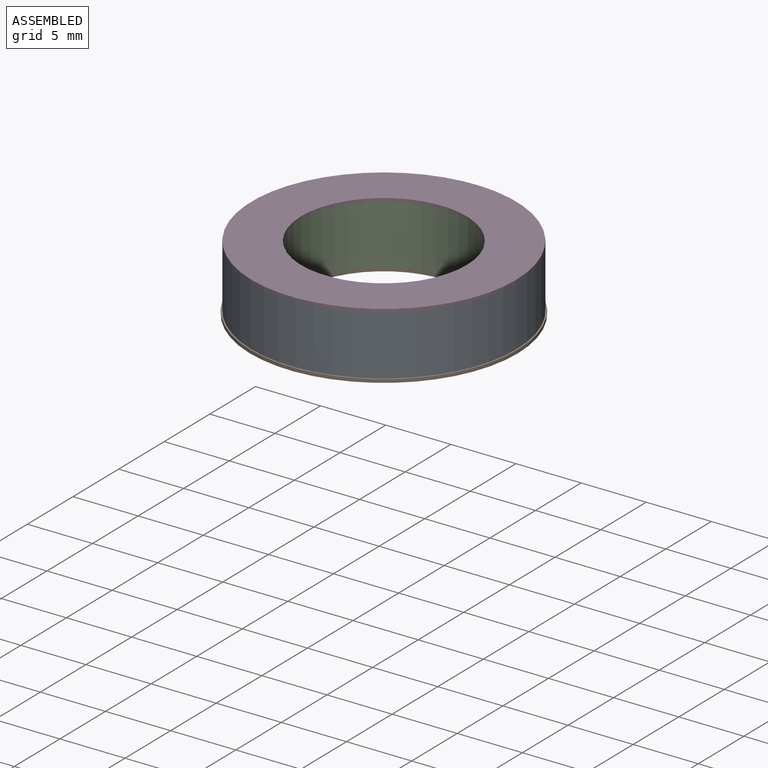
[diagram: assembled view]
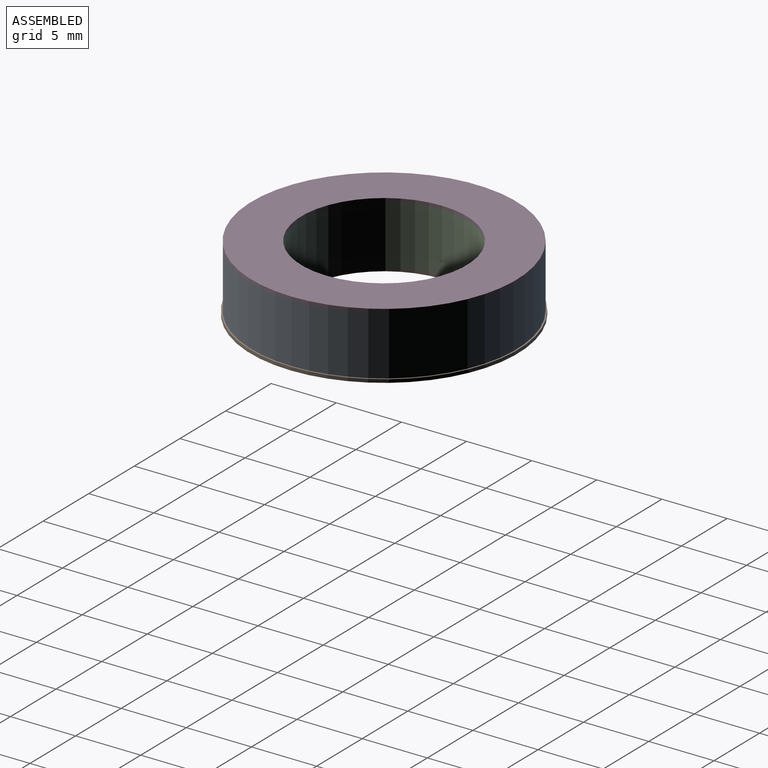
[diagram: assembled view, second angle]
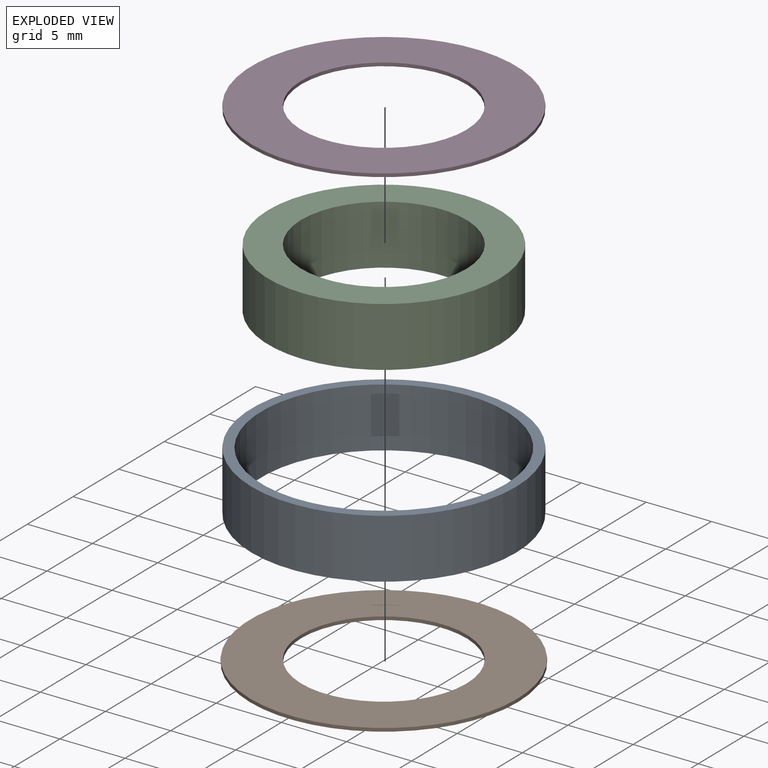
[diagram: exploded view]
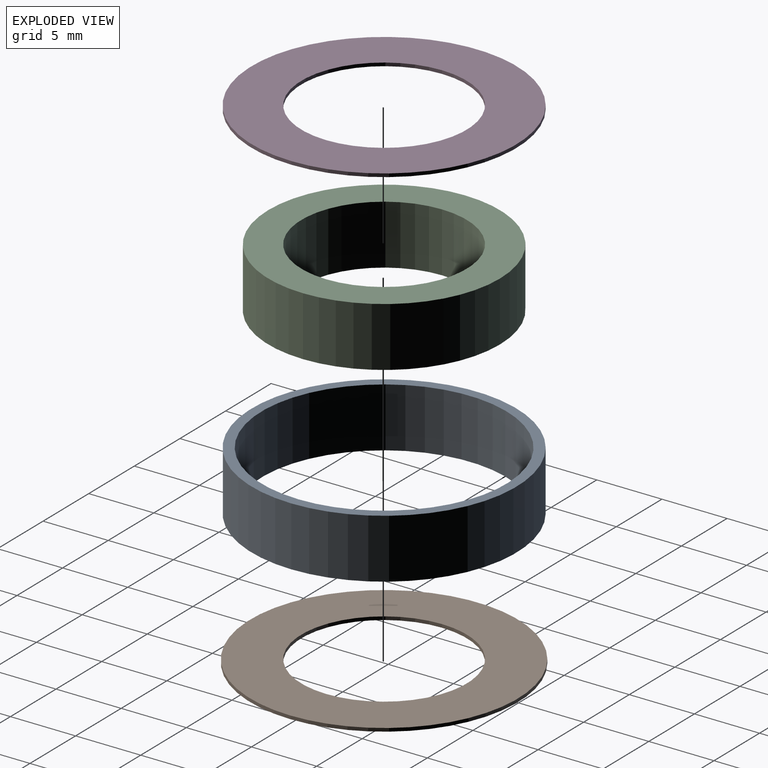
[diagram: exploded view, second angle]
ASSEMBLY  parts=4 mates=3
PART A: 4 faces, bbox 20.3x20.3x4.6 mm
  f0: cylinder r=9.4mm len=18.8mm, axis (0,0,-1), area 270mm2, adj f2,f3
  f1: cylinder r=10.16mm len=20.32mm, axis (0,0,-1), area 291.9mm2, adj f2,f3
  f2: plane 20.32x20.32mm, normal (0,0,1), area 46.8mm2, adj f0,f1
  f3: plane 20.32x20.32mm, normal (0,0,-1), area 46.8mm2, adj f0,f1
PART B: 4 faces, bbox 20.5x20.5x0.3 mm
  f0: cylinder r=6.35mm len=12.7mm, axis (0,0,1), area 10.1mm2, adj f2,f3
  f1: cylinder r=10.27mm len=20.54mm, axis (0,0,1), area 16.4mm2, adj f2,f3
  f2: plane 20.54x20.54mm, normal (0,0,-1), area 204.5mm2, adj f0,f1
  f3: plane 20.54x20.54mm, normal (0,0,1), area 204.5mm2, adj f0,f1
PART C: 4 faces, bbox 17.8x17.8x4.6 mm
  f0: cylinder r=6.35mm len=12.7mm, axis (0,0,-1), area 182.4mm2, adj f2,f3
  f1: cylinder r=8.89mm len=17.78mm, axis (0,0,-1), area 255.4mm2, adj f2,f3
  f2: plane 17.78x17.78mm, normal (0,0,1), area 121.6mm2, adj f0,f1
  f3: plane 17.78x17.78mm, normal (0,0,-1), area 121.6mm2, adj f0,f1
PART D: 4 faces, bbox 20.3x20.3x0.3 mm
  f0: cylinder r=10.16mm len=20.32mm, axis (0,0,-1), area 16.2mm2, adj f2,f3
  f1: cylinder r=6.35mm len=12.7mm, axis (0,0,-1), area 10.1mm2, adj f2,f3
  f2: plane 20.32x20.32mm, normal (0,0,1), area 197.6mm2, adj f0,f1
  f3: plane 20.32x20.32mm, normal (0,0,-1), area 197.6mm2, adj f0,f1
PLACE A t=(0.73,5.19,-0.84)mm
PLACE B t=(0.73,5.19,-0.84)mm
PLACE C t=(0.73,5.19,-0.84)mm
PLACE D t=(0.73,5.19,-0.84)mm
MATE fastened B.f0 <-> C.f0  axis (0,0,1) through (0.73,5.19,-0.84)mm
MATE revolute A.f0 <-> C.f0  axis (0,0,-1) through (0.73,5.19,1.45)mm
MATE fastened D.f0 <-> C.f0  axis (0,0,-1) through (0.73,5.19,3.73)mm
